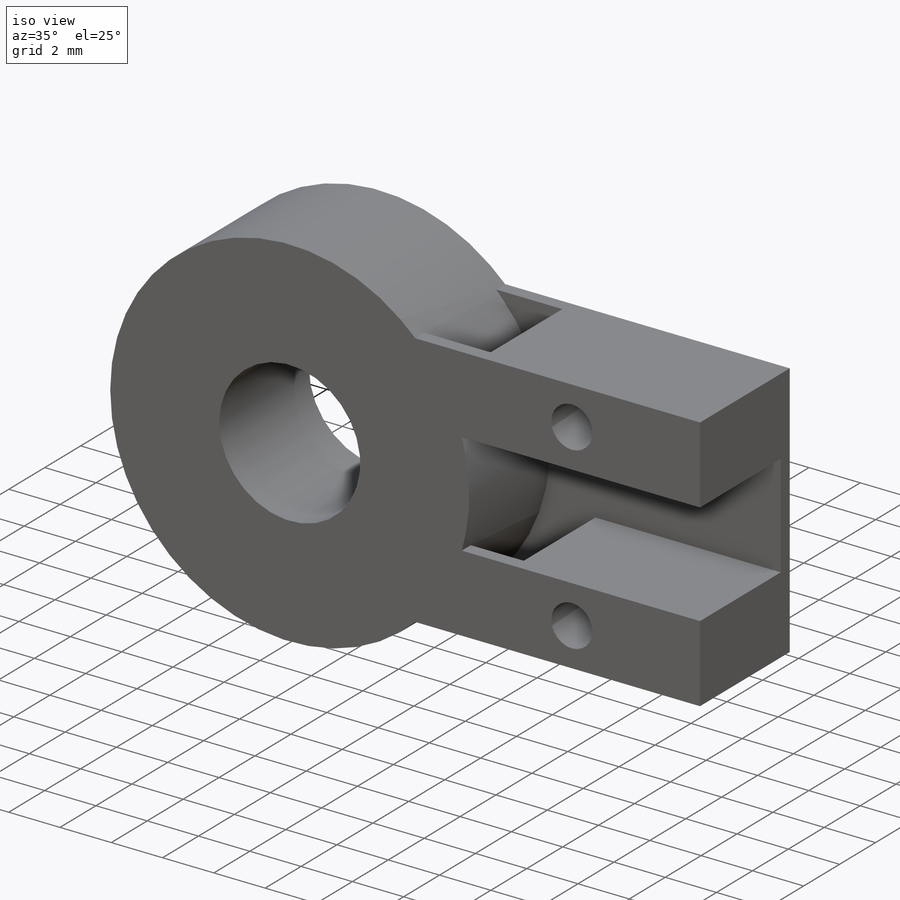
[diagram: iso view]
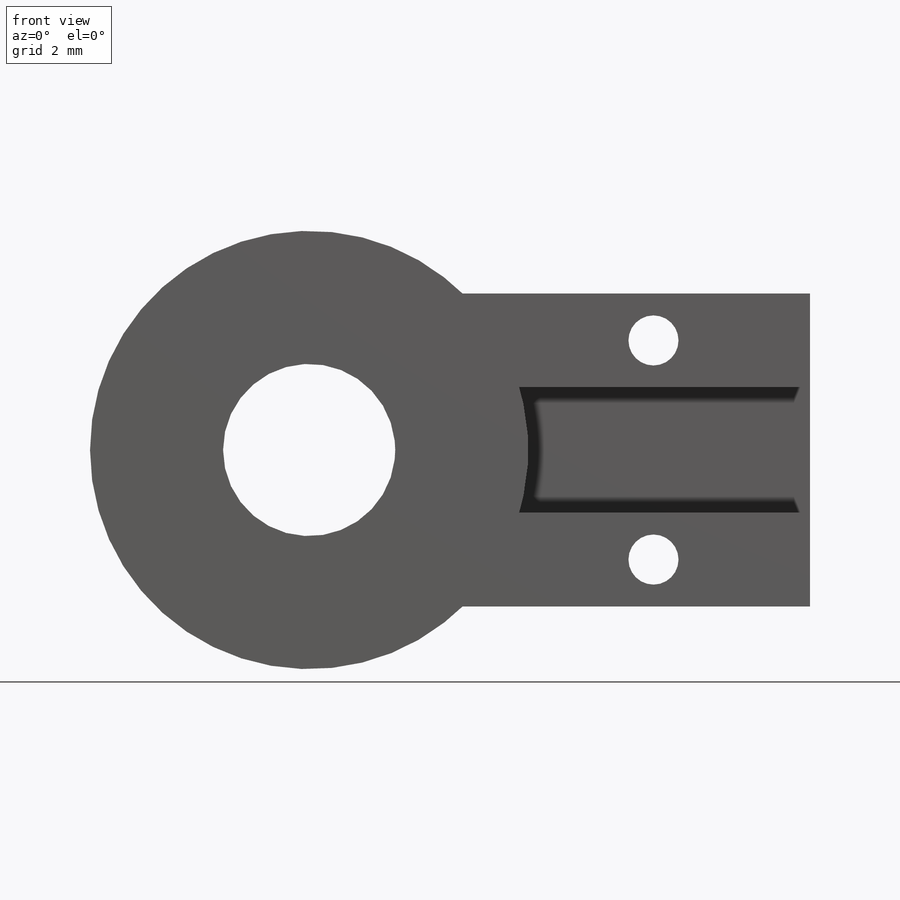
[diagram: front view]
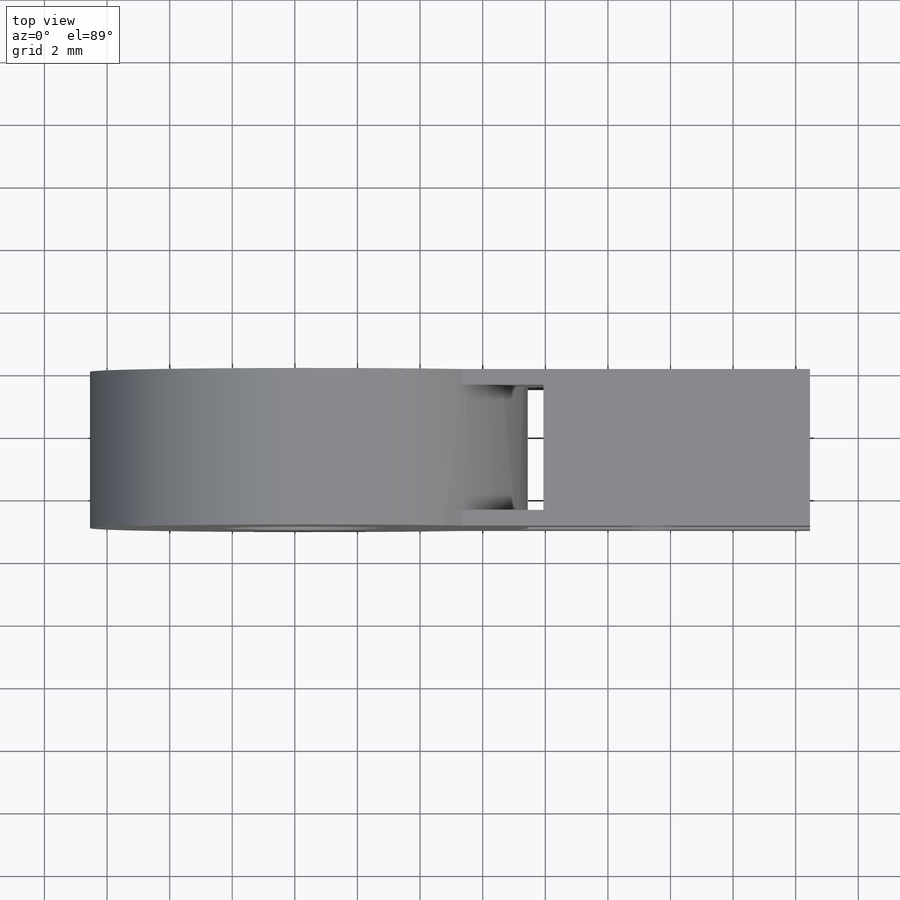
[diagram: top view]
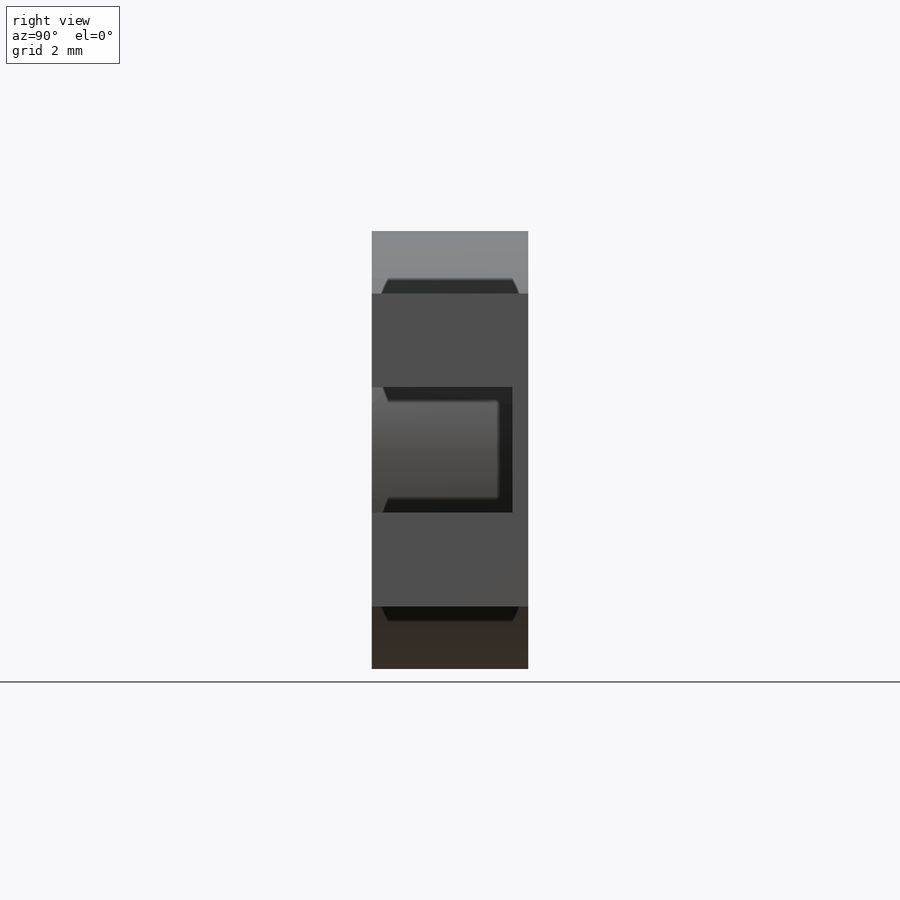
[diagram: right view]
SOLIDWORKS PART (.sldprt)
format: sldprt  version: not decoded by parser v0  size: 251,904 bytes
history: native  units: mm
features: sketch x6, cut_extrude x3, extrude x2, material x1 (+13 scaffold rows collapsed)
feature tree (25):
  scaffold x13  (default folders/planes/origin — collapsed)
  material  "Material <not specified>"
  sketch  "Sketch1"  dims[D1=~5.133707mm]
  sketch  "Sketch2"
  extrude  "Boss-Extrude1"  Depth=5mm
  sketch  "Sketch3"  dims[D1=5.5mm]
  cut_extrude  "Joint Hole"  [1 undecoded]
  sketch  "Sketch8"  dims[D1=2.0mm]
  cut_extrude  "Cut-Extrude2"  Depth=5.5mm
  sketch  "Sketch7"  dims[D1=~12.036175mm]
  cut_extrude  "Screw Holes"  [1 undecoded]
  sketch  "Sketch10"  dims[c1.D1=3.0mm c1.D2=~3.875985mm c2.D1=3.0mm c2.D2=~3.875985mm]
  extrude  "Boss-Extrude2"  Depth=0.5mm
decode coverage: 8 of 11 modeling features carry decoded parameters
note: ~ marks probable driven/reference dimensions
note: 2 parameter values undecoded
note: suppression state not decoded; provenance and decode notes live in map.json
